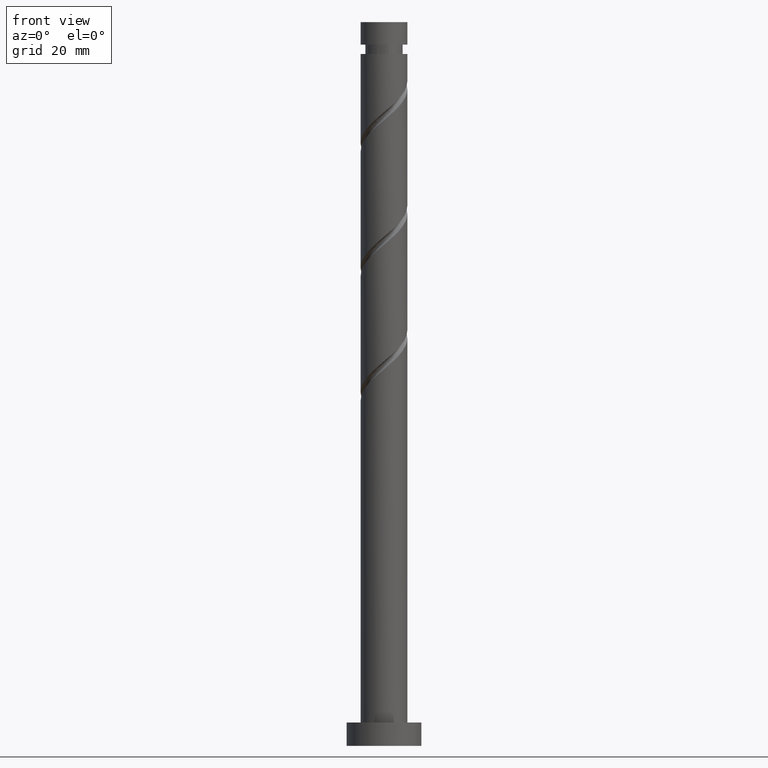
[diagram: clean part render]
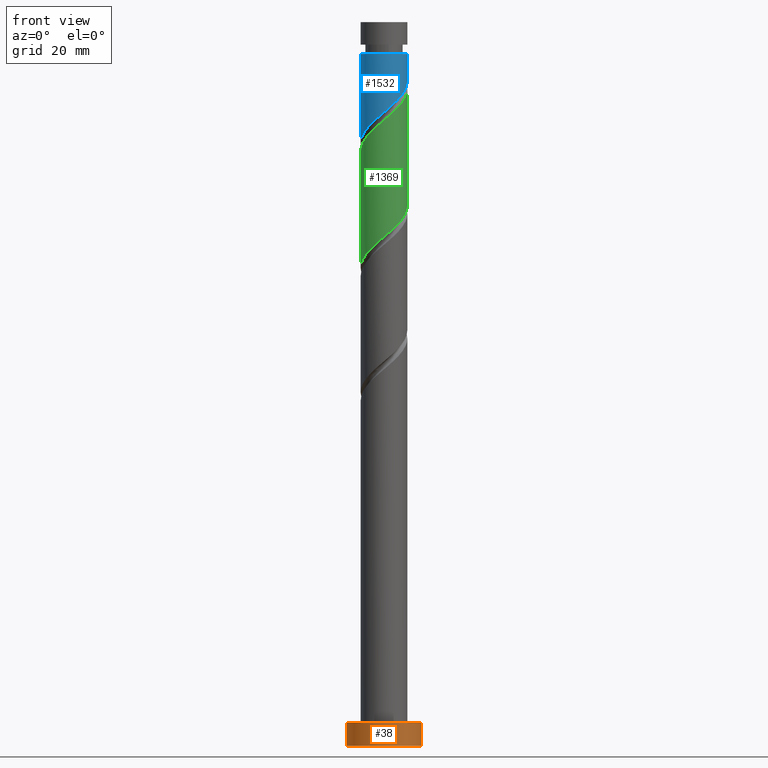
[diagram: same view with three faces highlighted in distinct colors, each labeled with its STEP entity id]
A machine part, front view with three faces highlighted in distinct colors.
Their STEP definitions:

[orange] entity #38 — the highlighted cylindrical surface (partial cylindrical patch) has radius 8 mm, axis along (-0, -0, -1).
#36 = CIRCLE ( 'NONE', #1337, 8.000000000000000000 ) ;
#38 = ADVANCED_FACE ( 'NONE', ( #1553 ), #144, .T. ) ;
#51 = CARTESIAN_POINT ( 'NONE',  ( 0.000000000000000000, 0.000000000000000000, 0.000000000000000000 ) ) ;
#86 = ORIENTED_EDGE ( 'NONE', *, *, #1110, .F. ) ;
#109 = VERTEX_POINT ( 'NONE', #1325 ) ;
#121 = DIRECTION ( 'NONE',  ( -1.000000000000000000, 0.000000000000000000, 0.000000000000000000 ) ) ;
#144 = CYLINDRICAL_SURFACE ( 'NONE', #950, 8.000000000000000000 ) ;
#228 = EDGE_CURVE ( 'NONE', #1089, #939, #36, .T. ) ;
#273 = DIRECTION ( 'NONE',  ( -0.000000000000000000, -0.000000000000000000, -1.000000000000000000 ) ) ;
#340 = DIRECTION ( 'NONE',  ( 0.000000000000000000, 0.000000000000000000, 1.000000000000000000 ) ) ;
#383 = DIRECTION ( 'NONE',  ( -0.000000000000000000, -0.000000000000000000, -1.000000000000000000 ) ) ;
#410 = CARTESIAN_POINT ( 'NONE',  ( -8.000000000000000000, 0.000000000000000000, 5.000000000000000000 ) ) ;
#475 = EDGE_CURVE ( 'NONE', #1249, #939, #571, .T. ) ;
#560 = LINE ( 'NONE', #410, #1527 ) ;
#571 = LINE ( 'NONE', #579, #1367 ) ;
#575 = DIRECTION ( 'NONE',  ( 0.000000000000000000, 0.000000000000000000, 1.000000000000000000 ) ) ;
#579 = CARTESIAN_POINT ( 'NONE',  ( 8.000000000000000000, 9.797174393178825657E-16, 5.000000000000000000 ) ) ;
#643 = CIRCLE ( 'NONE', #796, 8.000000000000000000 ) ;
#688 = ORIENTED_EDGE ( 'NONE', *, *, #1242, .T. ) ;
#755 = CARTESIAN_POINT ( 'NONE',  ( -8.000000000000000000, 0.000000000000000000, 0.000000000000000000 ) ) ;
#773 = EDGE_LOOP ( 'NONE', ( #856, #86, #688, #966 ) ) ;
#796 = AXIS2_PLACEMENT_3D ( 'NONE', #1124, #340, #1406 ) ;
#812 = DIRECTION ( 'NONE',  ( -0.000000000000000000, -0.000000000000000000, -1.000000000000000000 ) ) ;
#856 = ORIENTED_EDGE ( 'NONE', *, *, #475, .F. ) ;
#939 = VERTEX_POINT ( 'NONE', #1099 ) ;
#950 = AXIS2_PLACEMENT_3D ( 'NONE', #1175, #273, #121 ) ;
#966 = ORIENTED_EDGE ( 'NONE', *, *, #228, .T. ) ;
#1089 = VERTEX_POINT ( 'NONE', #755 ) ;
#1099 = CARTESIAN_POINT ( 'NONE',  ( 8.000000000000000000, 9.797174393178825657E-16, 0.000000000000000000 ) ) ;
#1110 = EDGE_CURVE ( 'NONE', #109, #1249, #643, .T. ) ;
#1124 = CARTESIAN_POINT ( 'NONE',  ( 0.000000000000000000, 0.000000000000000000, 5.000000000000000000 ) ) ;
#1175 = CARTESIAN_POINT ( 'NONE',  ( 0.000000000000000000, 0.000000000000000000, 5.000000000000000000 ) ) ;
#1242 = EDGE_CURVE ( 'NONE', #109, #1089, #560, .T. ) ;
#1249 = VERTEX_POINT ( 'NONE', #1310 ) ;
#1310 = CARTESIAN_POINT ( 'NONE',  ( 8.000000000000000000, 9.797174393178825657E-16, 5.000000000000000000 ) ) ;
#1325 = CARTESIAN_POINT ( 'NONE',  ( -8.000000000000000000, 0.000000000000000000, 5.000000000000000000 ) ) ;
#1337 = AXIS2_PLACEMENT_3D ( 'NONE', #51, #575, #1483 ) ;
#1367 = VECTOR ( 'NONE', #812, 1000.000000000000000 ) ;
#1406 = DIRECTION ( 'NONE',  ( 1.000000000000000000, 0.000000000000000000, 0.000000000000000000 ) ) ;
#1483 = DIRECTION ( 'NONE',  ( 1.000000000000000000, 0.000000000000000000, 0.000000000000000000 ) ) ;
#1527 = VECTOR ( 'NONE', #383, 1000.000000000000000 ) ;
#1553 = FACE_OUTER_BOUND ( 'NONE', #773, .T. ) ;

[blue] entity #1532 — the highlighted cylindrical surface (edge-blend (fillet) strip) has radius 5 mm, axis along (-0, -0, -1).
#16 = EDGE_CURVE ( 'NONE', #339, #1649, #1316, .T. ) ;
#43 = CARTESIAN_POINT ( 'NONE',  ( -4.999999999999999112, -1.510638891053149259E-15, 129.0284170974967992 ) ) ;
#54 = CARTESIAN_POINT ( 'NONE',  ( -0.9949874371066220746, -4.899999999999999467, 134.8456292848625537 ) ) ;
#55 = DIRECTION ( 'NONE',  ( -0.000000000000000000, -0.000000000000000000, -1.000000000000000000 ) ) ;
#65 = CYLINDRICAL_SURFACE ( 'NONE', #1395, 5.000000000000000000 ) ;
#72 = CARTESIAN_POINT ( 'NONE',  ( -4.870529496359500499, -1.130461155941268059, 129.9971444363777096 ) ) ;
#127 = CARTESIAN_POINT ( 'NONE',  ( -5.000000000000000000, 0.000000000000000000, 155.0000000000000000 ) ) ;
#170 = CARTESIAN_POINT ( 'NONE',  ( 0.000000000000000000, 0.000000000000000000, 155.0000000000000000 ) ) ;
#182 = DIRECTION ( 'NONE',  ( -0.000000000000000000, -0.000000000000000000, -1.000000000000000000 ) ) ;
#190 = VERTEX_POINT ( 'NONE', #799 ) ;
#199 = CARTESIAN_POINT ( 'NONE',  ( 0.000000000000000000, 0.000000000000000000, 148.1789626181958965 ) ) ;
#320 = CARTESIAN_POINT ( 'NONE',  ( 0.4258060737845039134, -4.981835925392186226, 136.0577504969837719 ) ) ;
#326 = CARTESIAN_POINT ( 'NONE',  ( -1.699501077681990768, -4.756942403746379000, 134.2395686788019873 ) ) ;
#339 = VERTEX_POINT ( 'NONE', #1065 ) ;
#435 = EDGE_CURVE ( 'NONE', #190, #1098, #601, .T. ) ;
#439 = CARTESIAN_POINT ( 'NONE',  ( -2.335172983261505131, -4.421195216029887298, 133.6335080727413356 ) ) ;
#450 = CARTESIAN_POINT ( 'NONE',  ( -4.001508515401012822, -3.082974950721431018, 131.8153262545595794 ) ) ;
#461 = CARTESIAN_POINT ( 'NONE',  ( -4.354751117665845328, -2.456856264250733002, 131.2092656484989277 ) ) ;
#472 = CARTESIAN_POINT ( 'NONE',  ( 5.000000000000000000, 6.123233995736766282E-16, 155.0000000000000000 ) ) ;
#508 = VECTOR ( 'NONE', #1615, 1000.000000000000000 ) ;
#518 = CARTESIAN_POINT ( 'NONE',  ( -4.999999999999999112, -1.510638891053149259E-15, 129.0284170974967992 ) ) ;
#577 = CARTESIAN_POINT ( 'NONE',  ( 3.051594711005883642, -3.960778928413059674, 138.4819929212262082 ) ) ;
#586 = ORIENTED_EDGE ( 'NONE', *, *, #435, .F. ) ;
#601 = LINE ( 'NONE', #472, #508 ) ;
#607 = ORIENTED_EDGE ( 'NONE', *, *, #930, .T. ) ;
#662 = DIRECTION ( 'NONE',  ( -0.000000000000000000, -0.000000000000000000, -1.000000000000000000 ) ) ;
#690 = CARTESIAN_POINT ( 'NONE',  ( 3.621068748224353762, -3.522025846900549428, 139.0880535272868315 ) ) ;
#709 = CARTESIAN_POINT ( 'NONE',  ( -2.970844888841019937, -4.085448028313397373, 133.0274474666807976 ) ) ;
#715 =( BOUNDED_CURVE ( )  B_SPLINE_CURVE ( 2, ( #946, #1479, #1486, #1342, #1494, #819, #1357, #690, #577, #1091, #1471, #1601, #320, #1202, #54, #326, #439, #709, #830, #450, #461, #718, #72, #849, #43 ),
 .UNSPECIFIED., .F., .T. ) 
 B_SPLINE_CURVE_WITH_KNOTS ( ( 3, 2, 2, 2, 2, 2, 2, 2, 2, 2, 2, 2, 3 ),
 ( 0.3045252162417514397, 0.3068181818181818232, 0.3181818181818181768, 0.3295454545454545303, 0.3409090909090908839, 0.3522727272727272929, 0.3636363636363636465, 0.3750000000000000000, 0.3863636363636363535, 0.3977272727272727071, 0.4090909090909091161, 0.4204545454545454697, 0.4295252162417513841 ),
 .UNSPECIFIED. ) 
 CURVE ( )  GEOMETRIC_REPRESENTATION_ITEM ( )  RATIONAL_B_SPLINE_CURVE ( ( 0.9061101570135536853, 0.9072237824201357936, 0.9090909090909131685, 0.8998376744372155178, 0.9090909090909131685, 0.8998376744372155178, 0.9090909090909131685, 0.8998376744372155178, 0.9090909090909131685, 0.8998376744372155178, 0.9090909090909131685, 0.8998376744372155178, 0.9090909090909131685, 0.8998376744372155178, 0.9090909090909131685, 0.8998376744372155178, 0.9090909090909131685, 0.8998376744372155178, 0.9090909090909131685, 0.8998376744372155178, 0.9090909090909131685, 0.8998376744372155178, 0.9090909090909131685, 0.9017048011079928926, 0.9061101570135534633 ) ) 
 REPRESENTATION_ITEM ( '' )  );
#718 = CARTESIAN_POINT ( 'NONE',  ( -4.707993719930677834, -1.830737577780034542, 130.6032050424383613 ) ) ;
#725 = DIRECTION ( 'NONE',  ( -1.000000000000000000, 0.000000000000000000, 0.000000000000000000 ) ) ;
#799 = CARTESIAN_POINT ( 'NONE',  ( 4.999999999999993783, 6.123233995736762338E-16, 148.1789626181958965 ) ) ;
#819 = CARTESIAN_POINT ( 'NONE',  ( 4.466659368005205799, -2.359186096053885073, 140.3001747394080496 ) ) ;
#830 = CARTESIAN_POINT ( 'NONE',  ( -3.486176702121015047, -3.584211489517412197, 132.4213868606201743 ) ) ;
#849 = CARTESIAN_POINT ( 'NONE',  ( -5.000000000000001776, -0.5726446369256107394, 129.5143770504681129 ) ) ;
#863 = EDGE_CURVE ( 'NONE', #1098, #1649, #715, .T. ) ;
#930 = EDGE_CURVE ( 'NONE', #190, #339, #1454, .T. ) ;
#946 = CARTESIAN_POINT ( 'NONE',  ( 4.999999999999999112, 3.589636968839166370E-16, 142.3617504308301136 ) ) ;
#1065 = CARTESIAN_POINT ( 'NONE',  ( -4.999999999999993783, 0.000000000000000000, 148.1789626181958965 ) ) ;
#1091 = CARTESIAN_POINT ( 'NONE',  ( 2.482120673787417520, -4.399532009925572140, 137.8759323151656133 ) ) ;
#1092 = DIRECTION ( 'NONE',  ( -1.000000000000000000, 0.000000000000000000, 0.000000000000000000 ) ) ;
#1098 = VERTEX_POINT ( 'NONE', #1276 ) ;
#1123 = EDGE_LOOP ( 'NONE', ( #586, #607, #1478, #1591 ) ) ;
#1202 = CARTESIAN_POINT ( 'NONE',  ( -0.2904737965312536030, -5.043057596253620822, 135.4516898909232339 ) ) ;
#1276 = CARTESIAN_POINT ( 'NONE',  ( 5.000000000000000000, 3.589636968839166370E-16, 142.3617504308301420 ) ) ;
#1316 = LINE ( 'NONE', #127, #1627 ) ;
#1342 = CARTESIAN_POINT ( 'NONE',  ( 4.950387810036377623, -1.005219118324889971, 141.5122959515292678 ) ) ;
#1357 = CARTESIAN_POINT ( 'NONE',  ( 4.043864058114778892, -2.940605971477217473, 139.6941141333474263 ) ) ;
#1365 = FACE_OUTER_BOUND ( 'NONE', #1123, .T. ) ;
#1395 = AXIS2_PLACEMENT_3D ( 'NONE', #170, #55, #1092 ) ;
#1454 = CIRCLE ( 'NONE', #1617, 4.999999999999993783 ) ;
#1471 = CARTESIAN_POINT ( 'NONE',  ( 1.812103308943839419, -4.660073132228159665, 137.2698717091049900 ) ) ;
#1478 = ORIENTED_EDGE ( 'NONE', *, *, #16, .T. ) ;
#1479 = CARTESIAN_POINT ( 'NONE',  ( 5.000000000000000000, -0.1438776326191202881, 142.2396524261119168 ) ) ;
#1486 = CARTESIAN_POINT ( 'NONE',  ( 4.991726541412347729, -0.2875171921111941420, 142.1183565575898626 ) ) ;
#1494 = CARTESIAN_POINT ( 'NONE',  ( 4.708523589020789935, -1.682202607189386967, 140.9062353454686445 ) ) ;
#1532 = ADVANCED_FACE ( 'NONE', ( #1365 ), #65, .T. ) ;
#1591 = ORIENTED_EDGE ( 'NONE', *, *, #863, .F. ) ;
#1601 = CARTESIAN_POINT ( 'NONE',  ( 1.142085944100263095, -4.920614254530754295, 136.6638111030444236 ) ) ;
#1615 = DIRECTION ( 'NONE',  ( -0.000000000000000000, -0.000000000000000000, -1.000000000000000000 ) ) ;
#1617 = AXIS2_PLACEMENT_3D ( 'NONE', #199, #182, #725 ) ;
#1627 = VECTOR ( 'NONE', #662, 1000.000000000000000 ) ;
#1649 = VERTEX_POINT ( 'NONE', #518 ) ;

[green] entity #1369 — the highlighted cylindrical surface (edge-blend (fillet) strip) has radius 5 mm, axis along (-0, -0, -1).
#10 = CARTESIAN_POINT ( 'NONE',  ( 1.699501077681991434, -4.756942403746386105, 135.4516898909232054 ) ) ;
#17 = CARTESIAN_POINT ( 'NONE',  ( -0.4258060737845069110, -4.981835925392195108, 133.6335080727413640 ) ) ;
#37 = VERTEX_POINT ( 'NONE', #520 ) ;
#73 = CARTESIAN_POINT ( 'NONE',  ( 4.043864058114778892, -2.940605971477217473, 113.0274474666807549 ) ) ;
#85 =( BOUNDED_CURVE ( )  B_SPLINE_CURVE ( 2, ( #1620, #183, #1082, #875, #1487, #957, #73, #1625, #968, #999, #1516, #578, #463, #710, #1394, #321, #600, #494, #235, #430, #1614, #753, #303, #1274, #108 ),
 .UNSPECIFIED., .F., .T. ) 
 B_SPLINE_CURVE_WITH_KNOTS ( ( 3, 2, 2, 2, 2, 2, 2, 2, 2, 2, 2, 2, 3 ),
 ( 0.5545252162417512176, 0.5568181818181817677, 0.5681818181818182323, 0.5795454545454545858, 0.5909090909090909394, 0.6022727272727272929, 0.6136363636363636465, 0.6250000000000000000, 0.6363636363636363535, 0.6477272727272727071, 0.6590909090909090606, 0.6704545454545454142, 0.6795252162417513286 ),
 .UNSPECIFIED. ) 
 CURVE ( )  GEOMETRIC_REPRESENTATION_ITEM ( )  RATIONAL_B_SPLINE_CURVE ( ( 0.9061101570135534633, 0.9072237824201356826, 0.9090909090909131685, 0.8998376744372155178, 0.9090909090909131685, 0.8998376744372155178, 0.9090909090909131685, 0.8998376744372155178, 0.9090909090909131685, 0.8998376744372155178, 0.9090909090909131685, 0.8998376744372155178, 0.9090909090909131685, 0.8998376744372155178, 0.9090909090909131685, 0.8998376744372155178, 0.9090909090909131685, 0.8998376744372155178, 0.9090909090909131685, 0.8998376744372155178, 0.9090909090909131685, 0.8998376744372155178, 0.9090909090909131685, 0.9017048011079928926, 0.9061101570135534633 ) ) 
 REPRESENTATION_ITEM ( '' )  );
#108 = CARTESIAN_POINT ( 'NONE',  ( -5.000000000000000000, 5.444282736072736138E-15, 102.3617504308301562 ) ) ;
#140 = FACE_OUTER_BOUND ( 'NONE', #1000, .T. ) ;
#183 = CARTESIAN_POINT ( 'NONE',  ( 5.000000000000000000, -0.1438776326191097410, 115.5729857594452312 ) ) ;
#224 = CARTESIAN_POINT ( 'NONE',  ( 5.000000000000000000, 6.123233995736766282E-16, 155.0000000000000000 ) ) ;
#235 = CARTESIAN_POINT ( 'NONE',  ( -3.486176702121015047, -3.584211489517412197, 105.7547201939534887 ) ) ;
#272 = CARTESIAN_POINT ( 'NONE',  ( 2.970844888841024378, -4.085448028313401814, 136.6638111030443952 ) ) ;
#279 = CARTESIAN_POINT ( 'NONE',  ( 2.335172983261507795, -4.421195216029893515, 136.0577504969838003 ) ) ;
#303 = CARTESIAN_POINT ( 'NONE',  ( -4.870529496359500499, -1.130461155941268059, 103.3304777697110524 ) ) ;
#304 = CARTESIAN_POINT ( 'NONE',  ( -5.000000000000000000, 0.000000000000000000, 155.0000000000000000 ) ) ;
#310 = EDGE_CURVE ( 'NONE', #1146, #1080, #868, .T. ) ;
#321 = CARTESIAN_POINT ( 'NONE',  ( -1.699501077681990768, -4.756942403746379000, 107.5729020121353159 ) ) ;
#354 = DIRECTION ( 'NONE',  ( -0.000000000000000000, -0.000000000000000000, -1.000000000000000000 ) ) ;
#357 = CARTESIAN_POINT ( 'NONE',  ( 0.000000000000000000, 0.000000000000000000, 155.0000000000000000 ) ) ;
#358 = ORIENTED_EDGE ( 'NONE', *, *, #310, .F. ) ;
#396 = CARTESIAN_POINT ( 'NONE',  ( -4.466659368005212016, -2.359186096053888626, 129.3910838303171431 ) ) ;
#423 =( BOUNDED_CURVE ( )  B_SPLINE_CURVE ( 2, ( #527, #1297, #504, #903, #1429, #396, #762, #1539, #1174, #1440, #1144, #778, #17, #1551, #1422, #10, #279, #272, #1030, #791, #1654, #1315, #1007, #1526, #782 ),
 .UNSPECIFIED., .F., .T. ) 
 B_SPLINE_CURVE_WITH_KNOTS ( ( 3, 2, 2, 2, 2, 2, 2, 2, 2, 2, 2, 2, 3 ),
 ( 0.5545252162417513286, 0.5568181818181818787, 0.5681818181818181213, 0.5795454545454545858, 0.5909090909090908283, 0.6022727272727272929, 0.6136363636363636465, 0.6250000000000000000, 0.6363636363636363535, 0.6477272727272727071, 0.6590909090909091717, 0.6704545454545454142, 0.6795252162417515507 ),
 .UNSPECIFIED. ) 
 CURVE ( )  GEOMETRIC_REPRESENTATION_ITEM ( )  RATIONAL_B_SPLINE_CURVE ( ( 0.9061101570135606798, 0.9072237824201427880, 0.9090909090909202739, 0.8998376744372226232, 0.9090909090909202739, 0.8998376744372226232, 0.9090909090909202739, 0.8998376744372226232, 0.9090909090909202739, 0.8998376744372226232, 0.9090909090909202739, 0.8998376744372226232, 0.9090909090909202739, 0.8998376744372226232, 0.9090909090909202739, 0.8998376744372226232, 0.9090909090909202739, 0.8998376744372226232, 0.9090909090909202739, 0.8998376744372226232, 0.9090909090909202739, 0.8998376744372226232, 0.9090909090909202739, 0.9017048011079999981, 0.9061101570135607908 ) ) 
 REPRESENTATION_ITEM ( '' )  );
#430 = CARTESIAN_POINT ( 'NONE',  ( -4.001508515401012822, -3.082974950721431018, 105.1486595878928938 ) ) ;
#463 = CARTESIAN_POINT ( 'NONE',  ( 0.4258060737845039134, -4.981835925392186226, 109.3910838303171005 ) ) ;
#494 = CARTESIAN_POINT ( 'NONE',  ( -2.970844888841019937, -4.085448028313397373, 106.3607808000141404 ) ) ;
#504 = CARTESIAN_POINT ( 'NONE',  ( -4.991726541412356610, -0.2875171921111925877, 127.5729020121353301 ) ) ;
#520 = CARTESIAN_POINT ( 'NONE',  ( -5.000000000000007105, 2.886666395774807235E-15, 127.3295081388950081 ) ) ;
#527 = CARTESIAN_POINT ( 'NONE',  ( -5.000000000000007105, 2.886666395774807235E-15, 127.3295081388950081 ) ) ;
#531 = CARTESIAN_POINT ( 'NONE',  ( -5.000000000000000000, 5.444282736072736138E-15, 102.3617504308301562 ) ) ;
#536 = EDGE_CURVE ( 'NONE', #37, #743, #1204, .T. ) ;
#578 = CARTESIAN_POINT ( 'NONE',  ( 1.142085944100263095, -4.920614254530754295, 109.9971444363777380 ) ) ;
#600 = CARTESIAN_POINT ( 'NONE',  ( -2.335172983261505131, -4.421195216029887298, 106.9668414060746926 ) ) ;
#617 = CARTESIAN_POINT ( 'NONE',  ( 5.000000000000000000, 7.343798965416794784E-15, 115.6950837641634706 ) ) ;
#710 = CARTESIAN_POINT ( 'NONE',  ( -0.2904737965312536030, -5.043057596253620822, 108.7850232242565198 ) ) ;
#743 = VERTEX_POINT ( 'NONE', #531 ) ;
#753 = CARTESIAN_POINT ( 'NONE',  ( -4.707993719930677834, -1.830737577780034542, 103.9365383757716756 ) ) ;
#762 = CARTESIAN_POINT ( 'NONE',  ( -4.043864058114787774, -2.940605971477222358, 129.9971444363777096 ) ) ;
#778 = CARTESIAN_POINT ( 'NONE',  ( -1.142085944100265760, -4.920614254530760512, 133.0274474666807407 ) ) ;
#779 = ORIENTED_EDGE ( 'NONE', *, *, #536, .T. ) ;
#782 = CARTESIAN_POINT ( 'NONE',  ( 5.000000000000007994, 3.903730203612562477E-15, 140.6628414722283367 ) ) ;
#791 = CARTESIAN_POINT ( 'NONE',  ( 4.001508515401017263, -3.082974950721437679, 137.8759323151655849 ) ) ;
#854 = VECTOR ( 'NONE', #969, 1000.000000000000000 ) ;
#868 = LINE ( 'NONE', #224, #1308 ) ;
#875 = CARTESIAN_POINT ( 'NONE',  ( 4.950387810036377623, -1.005219118324889971, 114.8456292848625964 ) ) ;
#903 = CARTESIAN_POINT ( 'NONE',  ( -4.950387810036383840, -1.005219118324889527, 128.1789626181959250 ) ) ;
#904 = ORIENTED_EDGE ( 'NONE', *, *, #1657, .F. ) ;
#957 = CARTESIAN_POINT ( 'NONE',  ( 4.466659368005205799, -2.359186096053885073, 113.6335080727414066 ) ) ;
#968 = CARTESIAN_POINT ( 'NONE',  ( 3.051594711005883642, -3.960778928413059674, 111.8153262545595794 ) ) ;
#969 = DIRECTION ( 'NONE',  ( -0.000000000000000000, -0.000000000000000000, -1.000000000000000000 ) ) ;
#999 = CARTESIAN_POINT ( 'NONE',  ( 2.482120673787417520, -4.399532009925572140, 111.2092656484989419 ) ) ;
#1000 = EDGE_LOOP ( 'NONE', ( #358, #904, #779, #1561 ) ) ;
#1007 = CARTESIAN_POINT ( 'NONE',  ( 4.870529496359508492, -1.130461155941271389, 139.6941141333473695 ) ) ;
#1030 = CARTESIAN_POINT ( 'NONE',  ( 3.486176702121021709, -3.584211489517420635, 137.2698717091050185 ) ) ;
#1073 = DIRECTION ( 'NONE',  ( -0.000000000000000000, -0.000000000000000000, -1.000000000000000000 ) ) ;
#1080 = VERTEX_POINT ( 'NONE', #617 ) ;
#1082 = CARTESIAN_POINT ( 'NONE',  ( 4.991726541412347729, -0.2875171921111941420, 115.4516898909231628 ) ) ;
#1109 = CYLINDRICAL_SURFACE ( 'NONE', #1556, 5.000000000000000000 ) ;
#1144 = CARTESIAN_POINT ( 'NONE',  ( -1.812103308943844748, -4.660073132228168546, 132.4213868606201743 ) ) ;
#1146 = VERTEX_POINT ( 'NONE', #1501 ) ;
#1174 = CARTESIAN_POINT ( 'NONE',  ( -3.051594711005890748, -3.960778928413065003, 131.2092656484989561 ) ) ;
#1204 = LINE ( 'NONE', #304, #854 ) ;
#1237 = DIRECTION ( 'NONE',  ( -1.000000000000000000, 0.000000000000000000, 0.000000000000000000 ) ) ;
#1274 = CARTESIAN_POINT ( 'NONE',  ( -5.000000000000001776, -0.5726446369256107394, 102.8477103838014557 ) ) ;
#1297 = CARTESIAN_POINT ( 'NONE',  ( -5.000000000000006217, -0.1438776326191090471, 127.4516061436132333 ) ) ;
#1308 = VECTOR ( 'NONE', #354, 1000.000000000000000 ) ;
#1315 = CARTESIAN_POINT ( 'NONE',  ( 4.707993719930686716, -1.830737577780037428, 139.0880535272868030 ) ) ;
#1369 = ADVANCED_FACE ( 'NONE', ( #140 ), #1109, .T. ) ;
#1388 = EDGE_CURVE ( 'NONE', #1080, #743, #85, .T. ) ;
#1394 = CARTESIAN_POINT ( 'NONE',  ( -0.9949874371066220746, -4.899999999999999467, 108.1789626181958681 ) ) ;
#1422 = CARTESIAN_POINT ( 'NONE',  ( 0.9949874371066216305, -4.900000000000007461, 134.8456292848626106 ) ) ;
#1429 = CARTESIAN_POINT ( 'NONE',  ( -4.708523589020798816, -1.682202607189388521, 128.7850232242565198 ) ) ;
#1440 = CARTESIAN_POINT ( 'NONE',  ( -2.482120673787422405, -4.399532009925576581, 131.8153262545595510 ) ) ;
#1487 = CARTESIAN_POINT ( 'NONE',  ( 4.708523589020789935, -1.682202607189386967, 114.2395686788019589 ) ) ;
#1501 = CARTESIAN_POINT ( 'NONE',  ( 5.000000000000007994, 3.903730203612562477E-15, 140.6628414722283367 ) ) ;
#1516 = CARTESIAN_POINT ( 'NONE',  ( 1.812103308943839419, -4.660073132228159665, 110.6032050424383328 ) ) ;
#1526 = CARTESIAN_POINT ( 'NONE',  ( 5.000000000000010658, -0.5726446369256045221, 140.1768815192570514 ) ) ;
#1539 = CARTESIAN_POINT ( 'NONE',  ( -3.621068748224359091, -3.522025846900554313, 130.6032050424383328 ) ) ;
#1551 = CARTESIAN_POINT ( 'NONE',  ( 0.2904737965312516601, -5.043057596253627040, 134.2395686788019589 ) ) ;
#1556 = AXIS2_PLACEMENT_3D ( 'NONE', #357, #1073, #1237 ) ;
#1561 = ORIENTED_EDGE ( 'NONE', *, *, #1388, .F. ) ;
#1614 = CARTESIAN_POINT ( 'NONE',  ( -4.354751117665845328, -2.456856264250733002, 104.5425989818322563 ) ) ;
#1620 = CARTESIAN_POINT ( 'NONE',  ( 5.000000000000000000, 7.343798965416794784E-15, 115.6950837641634848 ) ) ;
#1625 = CARTESIAN_POINT ( 'NONE',  ( 3.621068748224353762, -3.522025846900549428, 112.4213868606201743 ) ) ;
#1654 = CARTESIAN_POINT ( 'NONE',  ( 4.354751117665853322, -2.456856264250739219, 138.4819929212262366 ) ) ;
#1657 = EDGE_CURVE ( 'NONE', #37, #1146, #423, .T. ) ;